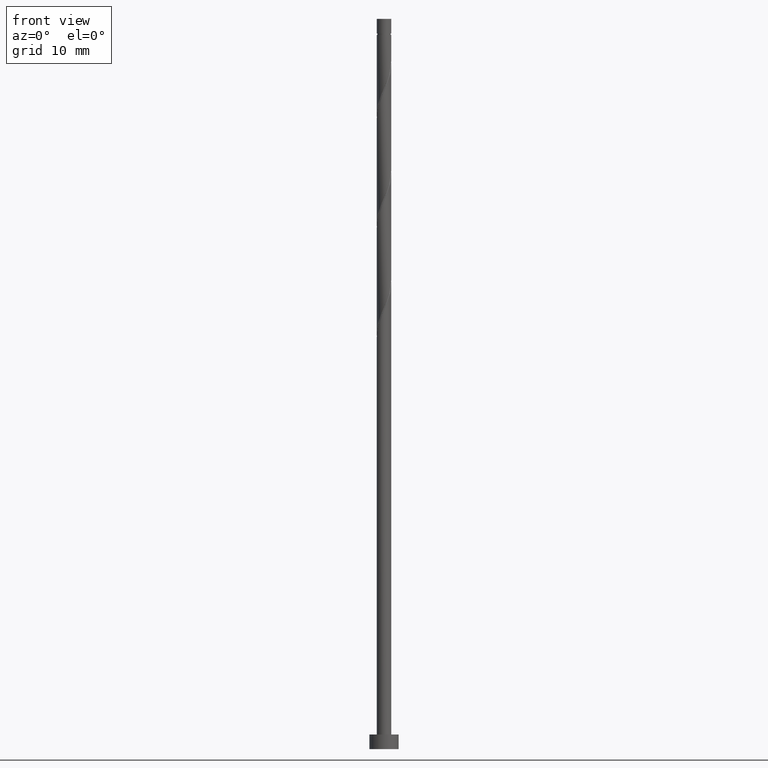
[diagram: clean part render]
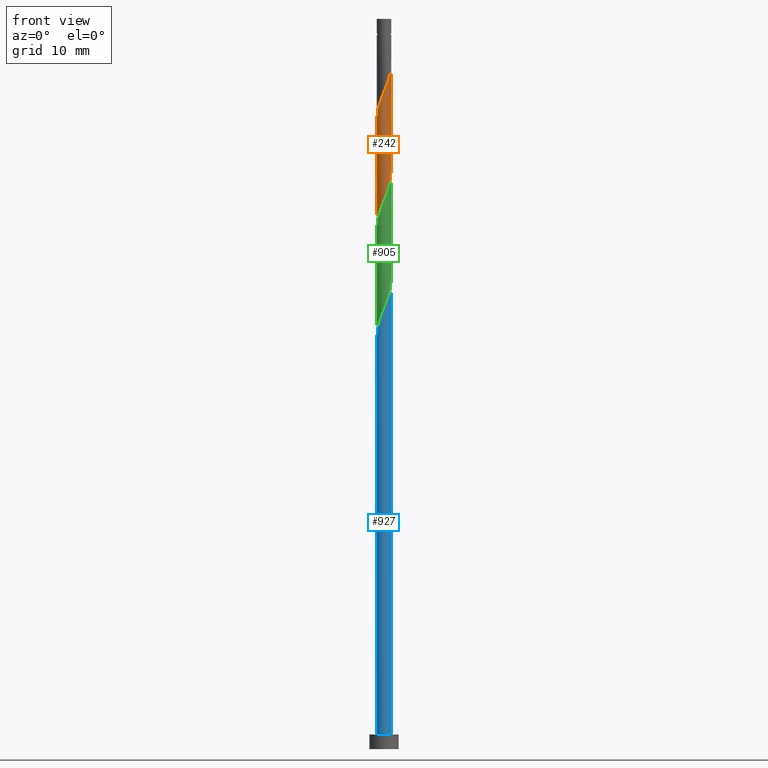
[diagram: same view with three faces highlighted in distinct colors, each labeled with its STEP entity id]
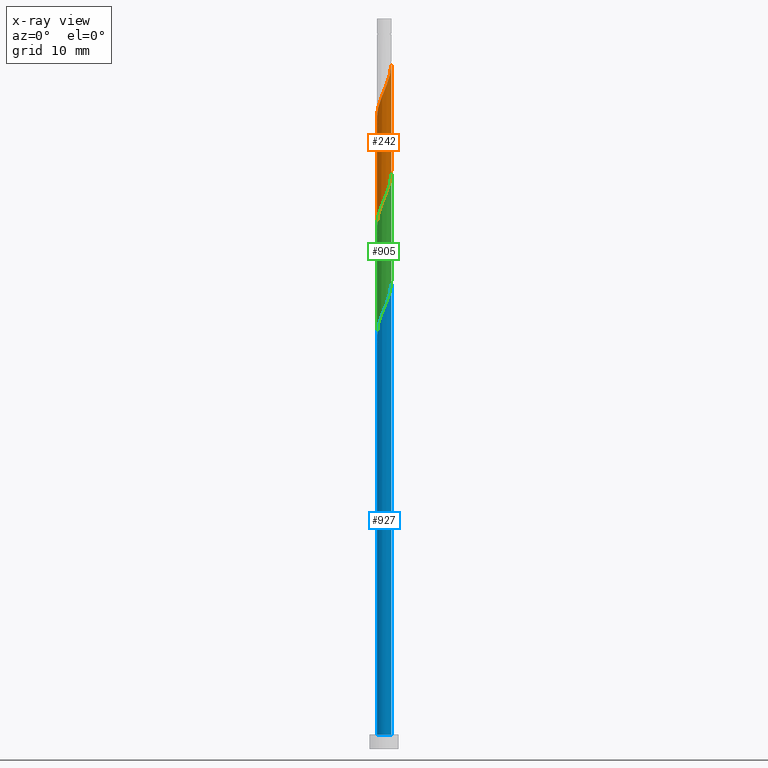
[diagram: x-ray of the same camera — body ghosted, the three highlighted faces saturated]
A machine part, front view with three faces highlighted in distinct colors.
The next image is the same camera in x-ray (body ghosted, the three faces saturated) — at least one of them is partly hidden behind the body in this view.
Their STEP definitions:

[orange] entity #242 — the highlighted cylindrical surface (edge-blend (fillet) strip) has radius 1 mm, axis along (-0, -0, -1).
#5 =( BOUNDED_CURVE ( )  B_SPLINE_CURVE ( 2, ( #513, #743, #1187, #159, #1424, #166, #1082, #1431, #299, #62, #95, #424, #1326, #213, #105, #1345, #992, #202, #1334, #553, #773 ),
 .UNSPECIFIED., .F., .T. ) 
 B_SPLINE_CURVE_WITH_KNOTS ( ( 3, 2, 2, 2, 2, 2, 2, 2, 2, 2, 3 ),
 ( 0.5585262615578963086, 0.5694444444444444198, 0.5833333333333333703, 0.5972222222222222099, 0.6111111111111111605, 0.6250000000000000000, 0.6388888888888888395, 0.6527777777777777901, 0.6666666666666666297, 0.6805555555555555802, 0.6835262615578967527 ),
 .UNSPECIFIED. ) 
 CURVE ( )  GEOMETRIC_REPRESENTATION_ITEM ( )  RATIONAL_B_SPLINE_CURVE ( ( 0.9475153373969255055, 0.9410068908218450767, 0.9523809523809528832, 0.9379121457259129713, 0.9523809523809528832, 0.9379121457259129713, 0.9523809523809528832, 0.9379121457259129713, 0.9523809523809528832, 0.9379121457259129713, 0.9523809523809528832, 0.9379121457259129713, 0.9523809523809528832, 0.9379121457259129713, 0.9523809523809528832, 0.9379121457259129713, 0.9523809523809528832, 0.9379121457259129713, 0.9523809523809528832, 0.9492862072850202226, 0.9475153373969248394 ) ) 
 REPRESENTATION_ITEM ( '' )  );
#40 = CARTESIAN_POINT ( 'NONE',  ( 0.7160823004724661267, -0.6980158586665925480, 91.96666666666669698 ) ) ;
#45 = CARTESIAN_POINT ( 'NONE',  ( 0.5930032716271590454, -0.8242804886476744475, 91.54999999999999716 ) ) ;
#51 =( BOUNDED_CURVE ( )  B_SPLINE_CURVE ( 2, ( #1087, #525, #622, #979, #1298, #727, #753, #384, #847, #1287, #734, #1071, #747, #45, #40, #391, #286, #503, #1191, #854, #1078 ),
 .UNSPECIFIED., .F., .T. ) 
 B_SPLINE_CURVE_WITH_KNOTS ( ( 3, 2, 2, 2, 2, 2, 2, 2, 2, 2, 3 ),
 ( 0.5585262615578964196, 0.5694444444444444198, 0.5833333333333332593, 0.5972222222222222099, 0.6111111111111111605, 0.6250000000000000000, 0.6388888888888888395, 0.6527777777777777901, 0.6666666666666667407, 0.6805555555555555802, 0.6835262615578969747 ),
 .UNSPECIFIED. ) 
 CURVE ( )  GEOMETRIC_REPRESENTATION_ITEM ( )  RATIONAL_B_SPLINE_CURVE ( ( 0.9475153373969233961, 0.9410068908218433004, 0.9523809523809509958, 0.9379121457259110839, 0.9523809523809509958, 0.9379121457259110839, 0.9523809523809509958, 0.9379121457259110839, 0.9523809523809509958, 0.9379121457259110839, 0.9523809523809509958, 0.9379121457259110839, 0.9523809523809509958, 0.9379121457259110839, 0.9523809523809509958, 0.9379121457259110839, 0.9523809523809509958, 0.9379121457259110839, 0.9523809523809509958, 0.9492862072850182242, 0.9475153373969227300 ) ) 
 REPRESENTATION_ITEM ( '' )  );
#62 = CARTESIAN_POINT ( 'NONE',  ( 0.07557042402773136991, -1.012610643405466471, 75.71666666666666856 ) ) ;
#69 = DIRECTION ( 'NONE',  ( -1.000000000000000000, 0.000000000000000000, 0.000000000000000000 ) ) ;
#85 = CARTESIAN_POINT ( 'NONE',  ( -1.000000000000000000, -2.603187352281614199E-15, 71.78964864647365118 ) ) ;
#92 = EDGE_CURVE ( 'NONE', #1195, #1173, #955, .T. ) ;
#95 = CARTESIAN_POINT ( 'NONE',  ( -0.09987492177719106690, -0.9949999999999999956, 75.30000000000002558 ) ) ;
#105 = CARTESIAN_POINT ( 'NONE',  ( -0.7160823004724664598, -0.6980158586665924370, 73.63333333333332575 ) ) ;
#144 = DIRECTION ( 'NONE',  ( -0.000000000000000000, -0.000000000000000000, -1.000000000000000000 ) ) ;
#156 = CARTESIAN_POINT ( 'NONE',  ( 1.000000000000000222, -4.290968163101563064E-16, 79.28964864647366539 ) ) ;
#159 = CARTESIAN_POINT ( 'NONE',  ( 0.9147317533455048277, -0.4408594147199561553, 78.21666666666665435 ) ) ;
#161 = ORIENTED_EDGE ( 'NONE', *, *, #1309, .F. ) ;
#166 = CARTESIAN_POINT ( 'NONE',  ( 0.7087838784083367871, -0.7271290242001067217, 77.38333333333332575 ) ) ;
#175 = ORIENTED_EDGE ( 'NONE', *, *, #92, .F. ) ;
#202 = CARTESIAN_POINT ( 'NONE',  ( -0.9841041459904508182, -0.2502603323944273539, 72.38333333333333997 ) ) ;
#213 = CARTESIAN_POINT ( 'NONE',  ( -0.5930032716271594895, -0.8242804886476744475, 74.05000000000001137 ) ) ;
#222 = FACE_OUTER_BOUND ( 'NONE', #597, .T. ) ;
#229 = AXIS2_PLACEMENT_3D ( 'NONE', #422, #1096, #69 ) ;
#231 = VECTOR ( 'NONE', #144, 1000.000000000000000 ) ;
#242 = ADVANCED_FACE ( 'NONE', ( #222 ), #771, .T. ) ;
#286 = CARTESIAN_POINT ( 'NONE',  ( 0.9116327376541116800, -0.4110057805399693898, 92.80000000000001137 ) ) ;
#288 = LINE ( 'NONE', #641, #231 ) ;
#299 = CARTESIAN_POINT ( 'NONE',  ( 0.2464583156134441955, -0.9691533927428537254, 76.13333333333332575 ) ) ;
#325 = ORIENTED_EDGE ( 'NONE', *, *, #630, .F. ) ;
#384 = CARTESIAN_POINT ( 'NONE',  ( -0.4173462071991567157, -0.9256961420802413132, 89.04999999999999716 ) ) ;
#391 = CARTESIAN_POINT ( 'NONE',  ( 0.8391613293177730970, -0.5717512286855108705, 92.38333333333331154 ) ) ;
#403 = CARTESIAN_POINT ( 'NONE',  ( 1.000000000000000000, 1.224646799147353207E-16, 100.0000000000000000 ) ) ;
#422 = CARTESIAN_POINT ( 'NONE',  ( 0.000000000000000000, 0.000000000000000000, 100.0000000000000000 ) ) ;
#424 = CARTESIAN_POINT ( 'NONE',  ( -0.2753202675821139200, -0.9773893565945336315, 74.88333333333332575 ) ) ;
#491 = ORIENTED_EDGE ( 'NONE', *, *, #1451, .T. ) ;
#503 = CARTESIAN_POINT ( 'NONE',  ( 0.9841041459904503741, -0.2502603323944278535, 93.21666666666666856 ) ) ;
#513 = CARTESIAN_POINT ( 'NONE',  ( 1.000000000000000222, -4.290968163101563064E-16, 79.28964864647366539 ) ) ;
#525 = CARTESIAN_POINT ( 'NONE',  ( -1.000000000000000444, -0.1381563937346758919, 86.64019839831189529 ) ) ;
#553 = CARTESIAN_POINT ( 'NONE',  ( -1.000000000000000444, -0.03726283816067003929, 71.87861330974669727 ) ) ;
#597 = EDGE_LOOP ( 'NONE', ( #175, #325, #491, #161 ) ) ;
#622 = CARTESIAN_POINT ( 'NONE',  ( -0.9625406160859104610, -0.2711375340762611774, 86.96666666666666856 ) ) ;
#630 = EDGE_CURVE ( 'NONE', #1402, #1195, #51, .T. ) ;
#641 = CARTESIAN_POINT ( 'NONE',  ( -1.000000000000000000, 0.000000000000000000, 100.0000000000000000 ) ) ;
#720 = VERTEX_POINT ( 'NONE', #85 ) ;
#727 = CARTESIAN_POINT ( 'NONE',  ( -0.7087838784083370092, -0.7271290242001063886, 88.21666666666666856 ) ) ;
#734 = CARTESIAN_POINT ( 'NONE',  ( 0.09987492177719080322, -0.9949999999999999956, 90.29999999999999716 ) ) ;
#743 = CARTESIAN_POINT ( 'NONE',  ( 1.000000000000000888, -0.1381563937346747262, 78.95980160168809903 ) ) ;
#747 = CARTESIAN_POINT ( 'NONE',  ( 0.4341617696046363717, -0.9008349226211040950, 91.13333333333332575 ) ) ;
#753 = CARTESIAN_POINT ( 'NONE',  ( -0.5630650428037469180, -0.8264125831401736288, 88.63333333333335418 ) ) ;
#771 = CYLINDRICAL_SURFACE ( 'NONE', #229, 1.000000000000000000 ) ;
#773 = CARTESIAN_POINT ( 'NONE',  ( -1.000000000000000000, -2.603187352281614199E-15, 71.78964864647365118 ) ) ;
#847 = CARTESIAN_POINT ( 'NONE',  ( -0.2464583156134444175, -0.9691533927428536144, 89.46666666666669698 ) ) ;
#854 = CARTESIAN_POINT ( 'NONE',  ( 1.000000000000000222, -0.03726283816066728455, 93.72138669025336810 ) ) ;
#868 = CARTESIAN_POINT ( 'NONE',  ( 1.000000000000000000, 7.866774965686214893E-17, 93.81035135352635734 ) ) ;
#917 = CARTESIAN_POINT ( 'NONE',  ( -1.000000000000000000, -8.581936326203144864E-17, 86.31035135352635734 ) ) ;
#955 = LINE ( 'NONE', #403, #958 ) ;
#958 = VECTOR ( 'NONE', #1203, 1000.000000000000000 ) ;
#979 = CARTESIAN_POINT ( 'NONE',  ( -0.9147317533455049388, -0.4408594147199554891, 87.38333333333331154 ) ) ;
#992 = CARTESIAN_POINT ( 'NONE',  ( -0.9116327376541120131, -0.4110057805399687791, 72.80000000000002558 ) ) ;
#1071 = CARTESIAN_POINT ( 'NONE',  ( 0.2753202675821132539, -0.9773893565945339645, 90.71666666666666856 ) ) ;
#1078 = CARTESIAN_POINT ( 'NONE',  ( 1.000000000000000000, 7.866774965686214893E-17, 93.81035135352635734 ) ) ;
#1082 = CARTESIAN_POINT ( 'NONE',  ( 0.5630650428037468069, -0.8264125831401737399, 76.96666666666666856 ) ) ;
#1087 = CARTESIAN_POINT ( 'NONE',  ( -1.000000000000000000, -8.581936326203144864E-17, 86.31035135352635734 ) ) ;
#1096 = DIRECTION ( 'NONE',  ( -0.000000000000000000, -0.000000000000000000, -1.000000000000000000 ) ) ;
#1173 = VERTEX_POINT ( 'NONE', #156 ) ;
#1187 = CARTESIAN_POINT ( 'NONE',  ( 0.9625406160859105720, -0.2711375340762611219, 78.63333333333331154 ) ) ;
#1191 = CARTESIAN_POINT ( 'NONE',  ( 0.9972268124083832896, -0.07442233948093021634, 93.63333333333335418 ) ) ;
#1195 = VERTEX_POINT ( 'NONE', #868 ) ;
#1203 = DIRECTION ( 'NONE',  ( -0.000000000000000000, -0.000000000000000000, -1.000000000000000000 ) ) ;
#1287 = CARTESIAN_POINT ( 'NONE',  ( -0.07557042402773206380, -1.012610643405466249, 89.88333333333333997 ) ) ;
#1298 = CARTESIAN_POINT ( 'NONE',  ( -0.8117578158769209740, -0.5839942194600308278, 87.80000000000001137 ) ) ;
#1309 = EDGE_CURVE ( 'NONE', #1173, #720, #5, .T. ) ;
#1326 = CARTESIAN_POINT ( 'NONE',  ( -0.4341617696046366492, -0.9008349226211040950, 74.46666666666665435 ) ) ;
#1334 = CARTESIAN_POINT ( 'NONE',  ( -0.9972268124083832896, -0.07442233948093023022, 71.96666666666668277 ) ) ;
#1345 = CARTESIAN_POINT ( 'NONE',  ( -0.8391613293177733190, -0.5717512286855107595, 73.21666666666664014 ) ) ;
#1402 = VERTEX_POINT ( 'NONE', #917 ) ;
#1424 = CARTESIAN_POINT ( 'NONE',  ( 0.8117578158769208629, -0.5839942194600313830, 77.80000000000002558 ) ) ;
#1431 = CARTESIAN_POINT ( 'NONE',  ( 0.4173462071991564382, -0.9256961420802414242, 76.54999999999999716 ) ) ;
#1451 = EDGE_CURVE ( 'NONE', #1402, #720, #288, .T. ) ;

[blue] entity #927 — the highlighted cylindrical surface (edge-blend (fillet) strip) has radius 1 mm, axis along (-0, -0, -1).
#32 = CARTESIAN_POINT ( 'NONE',  ( 1.000000000000000000, 1.224646799147353207E-16, 2.000000000000000000 ) ) ;
#48 = CIRCLE ( 'NONE', #898, 1.000000000000000000 ) ;
#49 = VECTOR ( 'NONE', #752, 1000.000000000000000 ) ;
#65 = ORIENTED_EDGE ( 'NONE', *, *, #1138, .F. ) ;
#87 = DIRECTION ( 'NONE',  ( 0.000000000000000000, 0.000000000000000000, 1.000000000000000000 ) ) ;
#101 = CARTESIAN_POINT ( 'NONE',  ( -0.2464583156134444175, -0.9691533927428536144, 59.46666666666667567 ) ) ;
#178 = CARTESIAN_POINT ( 'NONE',  ( -0.5630650428037469180, -0.8264125831401736288, 58.63333333333333286 ) ) ;
#189 = DIRECTION ( 'NONE',  ( 1.000000000000000000, 0.000000000000000000, 0.000000000000000000 ) ) ;
#197 = CARTESIAN_POINT ( 'NONE',  ( 0.9841041459904503741, -0.2502603323944278535, 63.21666666666666856 ) ) ;
#261 = ORIENTED_EDGE ( 'NONE', *, *, #264, .T. ) ;
#264 = EDGE_CURVE ( 'NONE', #459, #575, #48, .T. ) ;
#305 = CARTESIAN_POINT ( 'NONE',  ( -0.4173462071991567157, -0.9256961420802413132, 59.05000000000000426 ) ) ;
#320 = CARTESIAN_POINT ( 'NONE',  ( -0.9999999999999997780, -8.453207281310098825E-15, 56.31035135352637155 ) ) ;
#328 = CARTESIAN_POINT ( 'NONE',  ( 0.9972268124083832896, -0.07442233948093021634, 63.63333333333334707 ) ) ;
#353 = CARTESIAN_POINT ( 'NONE',  ( -1.000000000000000000, 0.000000000000000000, 2.000000000000000000 ) ) ;
#412 = CARTESIAN_POINT ( 'NONE',  ( 0.09987492177719080322, -0.9949999999999999956, 60.30000000000000426 ) ) ;
#459 = VERTEX_POINT ( 'NONE', #353 ) ;
#533 = CARTESIAN_POINT ( 'NONE',  ( -0.7087838784083370092, -0.7271290242001063886, 58.21666666666666856 ) ) ;
#541 = CARTESIAN_POINT ( 'NONE',  ( 1.000000000000000444, -0.03726283816066764537, 63.72138669025336100 ) ) ;
#569 = CARTESIAN_POINT ( 'NONE',  ( 0.2753202675821132539, -0.9773893565945339645, 60.71666666666666856 ) ) ;
#575 = VERTEX_POINT ( 'NONE', #32 ) ;
#577 = CARTESIAN_POINT ( 'NONE',  ( 0.000000000000000000, 0.000000000000000000, 100.0000000000000000 ) ) ;
#628 = EDGE_LOOP ( 'NONE', ( #65, #1275, #1321, #261 ) ) ;
#634 = VECTOR ( 'NONE', #1383, 1000.000000000000000 ) ;
#680 = CARTESIAN_POINT ( 'NONE',  ( 1.000000000000000000, 7.866774965686214893E-17, 63.81035135352636445 ) ) ;
#752 = DIRECTION ( 'NONE',  ( -0.000000000000000000, -0.000000000000000000, -1.000000000000000000 ) ) ;
#766 = VERTEX_POINT ( 'NONE', #320 ) ;
#768 = CARTESIAN_POINT ( 'NONE',  ( 0.9116327376541116800, -0.4110057805399693898, 62.79999999999999716 ) ) ;
#770 = EDGE_CURVE ( 'NONE', #766, #792, #935, .T. ) ;
#792 = VERTEX_POINT ( 'NONE', #1004 ) ;
#796 = CARTESIAN_POINT ( 'NONE',  ( -0.07557042402773206380, -1.012610643405466249, 59.88333333333335418 ) ) ;
#805 = CARTESIAN_POINT ( 'NONE',  ( -1.000000000000000000, 0.000000000000000000, 100.0000000000000000 ) ) ;
#864 = LINE ( 'NONE', #957, #49 ) ;
#880 = CARTESIAN_POINT ( 'NONE',  ( -0.8117578158769209740, -0.5839942194600308278, 57.80000000000000426 ) ) ;
#895 = CARTESIAN_POINT ( 'NONE',  ( -0.9147317533455049388, -0.4408594147199554891, 57.38333333333333997 ) ) ;
#898 = AXIS2_PLACEMENT_3D ( 'NONE', #1218, #87, #189 ) ;
#927 = ADVANCED_FACE ( 'NONE', ( #1025 ), #1266, .T. ) ;
#932 = DIRECTION ( 'NONE',  ( -1.000000000000000000, 0.000000000000000000, 0.000000000000000000 ) ) ;
#935 =( BOUNDED_CURVE ( )  B_SPLINE_CURVE ( 2, ( #1094, #988, #1435, #895, #880, #533, #178, #305, #101, #796, #412, #569, #1223, #996, #1208, #1323, #768, #197, #328, #541, #680 ),
 .UNSPECIFIED., .F., .T. ) 
 B_SPLINE_CURVE_WITH_KNOTS ( ( 3, 2, 2, 2, 2, 2, 2, 2, 2, 2, 3 ),
 ( 0.05852626155789682205, 0.06944444444444441977, 0.08333333333333337034, 0.09722222222222220989, 0.1111111111111111605, 0.1250000000000000000, 0.1388888888888888395, 0.1527777777777777901, 0.1666666666666666297, 0.1805555555555555802, 0.1835262615578969192 ),
 .UNSPECIFIED. ) 
 CURVE ( )  GEOMETRIC_REPRESENTATION_ITEM ( )  RATIONAL_B_SPLINE_CURVE ( ( 0.9475153373969229520, 0.9410068908218436334, 0.9523809523809509958, 0.9379121457259110839, 0.9523809523809509958, 0.9379121457259110839, 0.9523809523809509958, 0.9379121457259110839, 0.9523809523809509958, 0.9379121457259110839, 0.9523809523809509958, 0.9379121457259110839, 0.9523809523809509958, 0.9379121457259110839, 0.9523809523809509958, 0.9379121457259110839, 0.9523809523809509958, 0.9379121457259110839, 0.9523809523809509958, 0.9492862072850182242, 0.9475153373969227300 ) ) 
 REPRESENTATION_ITEM ( '' )  );
#957 = CARTESIAN_POINT ( 'NONE',  ( 1.000000000000000000, 1.224646799147353207E-16, 100.0000000000000000 ) ) ;
#988 = CARTESIAN_POINT ( 'NONE',  ( -0.9999999999999988898, -0.1381563937346808602, 56.64019839831190950 ) ) ;
#996 = CARTESIAN_POINT ( 'NONE',  ( 0.5930032716271590454, -0.8242804886476744475, 61.55000000000001137 ) ) ;
#1000 = EDGE_CURVE ( 'NONE', #766, #459, #1369, .T. ) ;
#1004 = CARTESIAN_POINT ( 'NONE',  ( 1.000000000000000000, 7.866774965686214893E-17, 63.81035135352636445 ) ) ;
#1025 = FACE_OUTER_BOUND ( 'NONE', #628, .T. ) ;
#1033 = DIRECTION ( 'NONE',  ( -0.000000000000000000, -0.000000000000000000, -1.000000000000000000 ) ) ;
#1094 = CARTESIAN_POINT ( 'NONE',  ( -0.9999999999999997780, -8.453207281310098825E-15, 56.31035135352637155 ) ) ;
#1130 = AXIS2_PLACEMENT_3D ( 'NONE', #577, #1033, #932 ) ;
#1138 = EDGE_CURVE ( 'NONE', #792, #575, #864, .T. ) ;
#1208 = CARTESIAN_POINT ( 'NONE',  ( 0.7160823004724661267, -0.6980158586665925480, 61.96666666666666856 ) ) ;
#1218 = CARTESIAN_POINT ( 'NONE',  ( 0.000000000000000000, 0.000000000000000000, 2.000000000000000000 ) ) ;
#1223 = CARTESIAN_POINT ( 'NONE',  ( 0.4341617696046363717, -0.9008349226211040950, 61.13333333333334707 ) ) ;
#1266 = CYLINDRICAL_SURFACE ( 'NONE', #1130, 1.000000000000000000 ) ;
#1275 = ORIENTED_EDGE ( 'NONE', *, *, #770, .F. ) ;
#1321 = ORIENTED_EDGE ( 'NONE', *, *, #1000, .T. ) ;
#1323 = CARTESIAN_POINT ( 'NONE',  ( 0.8391613293177730970, -0.5717512286855108705, 62.38333333333333997 ) ) ;
#1369 = LINE ( 'NONE', #805, #634 ) ;
#1383 = DIRECTION ( 'NONE',  ( -0.000000000000000000, -0.000000000000000000, -1.000000000000000000 ) ) ;
#1435 = CARTESIAN_POINT ( 'NONE',  ( -0.9625406160859104610, -0.2711375340762611774, 56.96666666666668277 ) ) ;

[green] entity #905 — the highlighted cylindrical surface (edge-blend (fillet) strip) has radius 1 mm, axis along (-0, -0, -1).
#34 = CARTESIAN_POINT ( 'NONE',  ( 1.000000000000000000, 1.224646799147353207E-16, 100.0000000000000000 ) ) ;
#35 = EDGE_CURVE ( 'NONE', #1433, #1214, #283, .T. ) ;
#52 = CARTESIAN_POINT ( 'NONE',  ( 0.2464583156134441955, -0.9691533927428537254, 61.13333333333333997 ) ) ;
#91 = CARTESIAN_POINT ( 'NONE',  ( -0.07557042402773206380, -1.012610643405466249, 74.88333333333333997 ) ) ;
#110 = CARTESIAN_POINT ( 'NONE',  ( 0.8391613293177730970, -0.5717512286855108705, 77.38333333333333997 ) ) ;
#116 = CARTESIAN_POINT ( 'NONE',  ( 0.000000000000000000, 0.000000000000000000, 100.0000000000000000 ) ) ;
#135 = EDGE_CURVE ( 'NONE', #878, #1132, #860, .T. ) ;
#150 = CARTESIAN_POINT ( 'NONE',  ( -0.4341617696046366492, -0.9008349226211040950, 59.46666666666667567 ) ) ;
#153 = DIRECTION ( 'NONE',  ( -0.000000000000000000, -0.000000000000000000, -1.000000000000000000 ) ) ;
#158 = CARTESIAN_POINT ( 'NONE',  ( -1.000000000000000000, 0.000000000000000000, 100.0000000000000000 ) ) ;
#163 = CARTESIAN_POINT ( 'NONE',  ( 1.000000000000000222, -4.290968163101563064E-16, 64.28964864647365118 ) ) ;
#170 = CARTESIAN_POINT ( 'NONE',  ( -0.5930032716271594895, -0.8242804886476744475, 59.04999999999999005 ) ) ;
#208 = CARTESIAN_POINT ( 'NONE',  ( -0.8117578158769209740, -0.5839942194600308278, 72.80000000000002558 ) ) ;
#220 = CARTESIAN_POINT ( 'NONE',  ( 0.7160823004724661267, -0.6980158586665925480, 76.96666666666669698 ) ) ;
#230 = CARTESIAN_POINT ( 'NONE',  ( 0.9841041459904503741, -0.2502603323944278535, 78.21666666666668277 ) ) ;
#245 = VECTOR ( 'NONE', #968, 1000.000000000000000 ) ;
#274 =( BOUNDED_CURVE ( )  B_SPLINE_CURVE ( 2, ( #1444, #420, #655, #1102, #208, #671, #1452, #428, #1119, #91, #558, #1014, #446, #336, #220, #110, #1377, #230, #820, #1143, #914 ),
 .UNSPECIFIED., .F., .T. ) 
 B_SPLINE_CURVE_WITH_KNOTS ( ( 3, 2, 2, 2, 2, 2, 2, 2, 2, 2, 3 ),
 ( 0.3085262615578962531, 0.3194444444444444198, 0.3333333333333333703, 0.3472222222222222099, 0.3611111111111111605, 0.3750000000000000000, 0.3888888888888888395, 0.4027777777777777901, 0.4166666666666666297, 0.4305555555555555802, 0.4335262615578967527 ),
 .UNSPECIFIED. ) 
 CURVE ( )  GEOMETRIC_REPRESENTATION_ITEM ( )  RATIONAL_B_SPLINE_CURVE ( ( 0.9475153373969236181, 0.9410068908218430783, 0.9523809523809509958, 0.9379121457259110839, 0.9523809523809509958, 0.9379121457259110839, 0.9523809523809509958, 0.9379121457259110839, 0.9523809523809509958, 0.9379121457259110839, 0.9523809523809509958, 0.9379121457259110839, 0.9523809523809509958, 0.9379121457259110839, 0.9523809523809509958, 0.9379121457259110839, 0.9523809523809509958, 0.9379121457259110839, 0.9523809523809509958, 0.9492862072850184463, 0.9475153373969230630 ) ) 
 REPRESENTATION_ITEM ( '' )  );
#276 = CARTESIAN_POINT ( 'NONE',  ( -0.8391613293177733190, -0.5717512286855107595, 58.21666666666667567 ) ) ;
#283 = LINE ( 'NONE', #34, #245 ) ;
#336 = CARTESIAN_POINT ( 'NONE',  ( 0.5930032716271590454, -0.8242804886476744475, 76.55000000000001137 ) ) ;
#378 = CARTESIAN_POINT ( 'NONE',  ( -0.7160823004724664598, -0.6980158586665924370, 58.63333333333332575 ) ) ;
#389 = CARTESIAN_POINT ( 'NONE',  ( -1.000000000000000222, 1.930935673395703404E-16, 56.78964864647364408 ) ) ;
#420 = CARTESIAN_POINT ( 'NONE',  ( -1.000000000000000888, -0.1381563937346738657, 71.64019839831189529 ) ) ;
#428 = CARTESIAN_POINT ( 'NONE',  ( -0.4173462071991567157, -0.9256961420802413132, 74.05000000000002558 ) ) ;
#446 = CARTESIAN_POINT ( 'NONE',  ( 0.4341617696046363717, -0.9008349226211040950, 76.13333333333333997 ) ) ;
#509 = CARTESIAN_POINT ( 'NONE',  ( 0.4173462071991564382, -0.9256961420802414242, 61.54999999999999716 ) ) ;
#518 =( BOUNDED_CURVE ( )  B_SPLINE_CURVE ( 2, ( #163, #1281, #859, #1074, #741, #965, #1171, #509, #52, #960, #1198, #1414, #150, #170, #378, #276, #631, #1294, #616, #608, #1184 ),
 .UNSPECIFIED., .F., .T. ) 
 B_SPLINE_CURVE_WITH_KNOTS ( ( 3, 2, 2, 2, 2, 2, 2, 2, 2, 2, 3 ),
 ( 0.8085262615578966416, 0.8194444444444444198, 0.8333333333333333703, 0.8472222222222222099, 0.8611111111111111605, 0.8750000000000000000, 0.8888888888888888395, 0.9027777777777777901, 0.9166666666666666297, 0.9305555555555555802, 0.9335262615578967527 ),
 .UNSPECIFIED. ) 
 CURVE ( )  GEOMETRIC_REPRESENTATION_ITEM ( )  RATIONAL_B_SPLINE_CURVE ( ( 0.9475153373969250614, 0.9410068908218454098, 0.9523809523809528832, 0.9379121457259129713, 0.9523809523809528832, 0.9379121457259129713, 0.9523809523809528832, 0.9379121457259129713, 0.9523809523809528832, 0.9379121457259129713, 0.9523809523809528832, 0.9379121457259129713, 0.9523809523809528832, 0.9379121457259129713, 0.9523809523809528832, 0.9379121457259129713, 0.9523809523809528832, 0.9379121457259129713, 0.9523809523809528832, 0.9492862072850202226, 0.9475153373969248394 ) ) 
 REPRESENTATION_ITEM ( '' )  );
#526 = EDGE_CURVE ( 'NONE', #1214, #1132, #518, .T. ) ;
#558 = CARTESIAN_POINT ( 'NONE',  ( 0.09987492177719080322, -0.9949999999999999956, 75.30000000000003979 ) ) ;
#601 = VECTOR ( 'NONE', #153, 1000.000000000000000 ) ;
#608 = CARTESIAN_POINT ( 'NONE',  ( -1.000000000000000444, -0.03726283816067003929, 56.87861330974668306 ) ) ;
#616 = CARTESIAN_POINT ( 'NONE',  ( -0.9972268124083832896, -0.07442233948093023022, 56.96666666666666856 ) ) ;
#631 = CARTESIAN_POINT ( 'NONE',  ( -0.9116327376541120131, -0.4110057805399687791, 57.80000000000000426 ) ) ;
#632 = CARTESIAN_POINT ( 'NONE',  ( 1.000000000000000000, 7.866774965686214893E-17, 78.81035135352634313 ) ) ;
#635 = CARTESIAN_POINT ( 'NONE',  ( 1.000000000000000222, -4.290968163101563064E-16, 64.28964864647365118 ) ) ;
#655 = CARTESIAN_POINT ( 'NONE',  ( -0.9625406160859104610, -0.2711375340762611774, 71.96666666666669698 ) ) ;
#671 = CARTESIAN_POINT ( 'NONE',  ( -0.7087838784083370092, -0.7271290242001063886, 73.21666666666666856 ) ) ;
#685 = ORIENTED_EDGE ( 'NONE', *, *, #135, .T. ) ;
#689 = CYLINDRICAL_SURFACE ( 'NONE', #1313, 1.000000000000000000 ) ;
#714 = EDGE_LOOP ( 'NONE', ( #986, #758, #685, #1002 ) ) ;
#741 = CARTESIAN_POINT ( 'NONE',  ( 0.8117578158769208629, -0.5839942194600313830, 62.79999999999999716 ) ) ;
#758 = ORIENTED_EDGE ( 'NONE', *, *, #833, .F. ) ;
#820 = CARTESIAN_POINT ( 'NONE',  ( 0.9972268124083832896, -0.07442233948093021634, 78.63333333333332575 ) ) ;
#825 = DIRECTION ( 'NONE',  ( -0.000000000000000000, -0.000000000000000000, -1.000000000000000000 ) ) ;
#833 = EDGE_CURVE ( 'NONE', #878, #1433, #274, .T. ) ;
#859 = CARTESIAN_POINT ( 'NONE',  ( 0.9625406160859105720, -0.2711375340762611219, 63.63333333333333286 ) ) ;
#860 = LINE ( 'NONE', #158, #601 ) ;
#878 = VERTEX_POINT ( 'NONE', #1043 ) ;
#905 = ADVANCED_FACE ( 'NONE', ( #1135 ), #689, .T. ) ;
#914 = CARTESIAN_POINT ( 'NONE',  ( 1.000000000000000000, 7.866774965686214893E-17, 78.81035135352634313 ) ) ;
#960 = CARTESIAN_POINT ( 'NONE',  ( 0.07557042402773136991, -1.012610643405466471, 60.71666666666666146 ) ) ;
#965 = CARTESIAN_POINT ( 'NONE',  ( 0.7087838784083367871, -0.7271290242001067217, 62.38333333333332575 ) ) ;
#968 = DIRECTION ( 'NONE',  ( -0.000000000000000000, -0.000000000000000000, -1.000000000000000000 ) ) ;
#986 = ORIENTED_EDGE ( 'NONE', *, *, #35, .F. ) ;
#1002 = ORIENTED_EDGE ( 'NONE', *, *, #526, .F. ) ;
#1014 = CARTESIAN_POINT ( 'NONE',  ( 0.2753202675821132539, -0.9773893565945339645, 75.71666666666664014 ) ) ;
#1043 = CARTESIAN_POINT ( 'NONE',  ( -1.000000000000000000, -8.581936326203144864E-17, 71.31035135352634313 ) ) ;
#1074 = CARTESIAN_POINT ( 'NONE',  ( 0.9147317533455048277, -0.4408594147199561553, 63.21666666666667567 ) ) ;
#1102 = CARTESIAN_POINT ( 'NONE',  ( -0.9147317533455049388, -0.4408594147199554891, 72.38333333333331154 ) ) ;
#1119 = CARTESIAN_POINT ( 'NONE',  ( -0.2464583156134444175, -0.9691533927428536144, 74.46666666666666856 ) ) ;
#1132 = VERTEX_POINT ( 'NONE', #389 ) ;
#1135 = FACE_OUTER_BOUND ( 'NONE', #714, .T. ) ;
#1143 = CARTESIAN_POINT ( 'NONE',  ( 0.9999999999999997780, -0.03726283816067007398, 78.72138669025329705 ) ) ;
#1171 = CARTESIAN_POINT ( 'NONE',  ( 0.5630650428037468069, -0.8264125831401737399, 61.96666666666666856 ) ) ;
#1184 = CARTESIAN_POINT ( 'NONE',  ( -1.000000000000000222, 1.930935673395703650E-16, 56.78964864647364408 ) ) ;
#1198 = CARTESIAN_POINT ( 'NONE',  ( -0.09987492177719106690, -0.9949999999999999956, 60.30000000000000426 ) ) ;
#1214 = VERTEX_POINT ( 'NONE', #635 ) ;
#1261 = DIRECTION ( 'NONE',  ( -1.000000000000000000, 0.000000000000000000, 0.000000000000000000 ) ) ;
#1281 = CARTESIAN_POINT ( 'NONE',  ( 0.9999999999999995559, -0.1381563937346788618, 63.95980160168808482 ) ) ;
#1294 = CARTESIAN_POINT ( 'NONE',  ( -0.9841041459904508182, -0.2502603323944273539, 57.38333333333332575 ) ) ;
#1313 = AXIS2_PLACEMENT_3D ( 'NONE', #116, #825, #1261 ) ;
#1377 = CARTESIAN_POINT ( 'NONE',  ( 0.9116327376541116800, -0.4110057805399693898, 77.80000000000001137 ) ) ;
#1414 = CARTESIAN_POINT ( 'NONE',  ( -0.2753202675821139200, -0.9773893565945336315, 59.88333333333334707 ) ) ;
#1433 = VERTEX_POINT ( 'NONE', #632 ) ;
#1444 = CARTESIAN_POINT ( 'NONE',  ( -1.000000000000000000, -8.581936326203146096E-17, 71.31035135352634313 ) ) ;
#1452 = CARTESIAN_POINT ( 'NONE',  ( -0.5630650428037469180, -0.8264125831401736288, 73.63333333333332575 ) ) ;